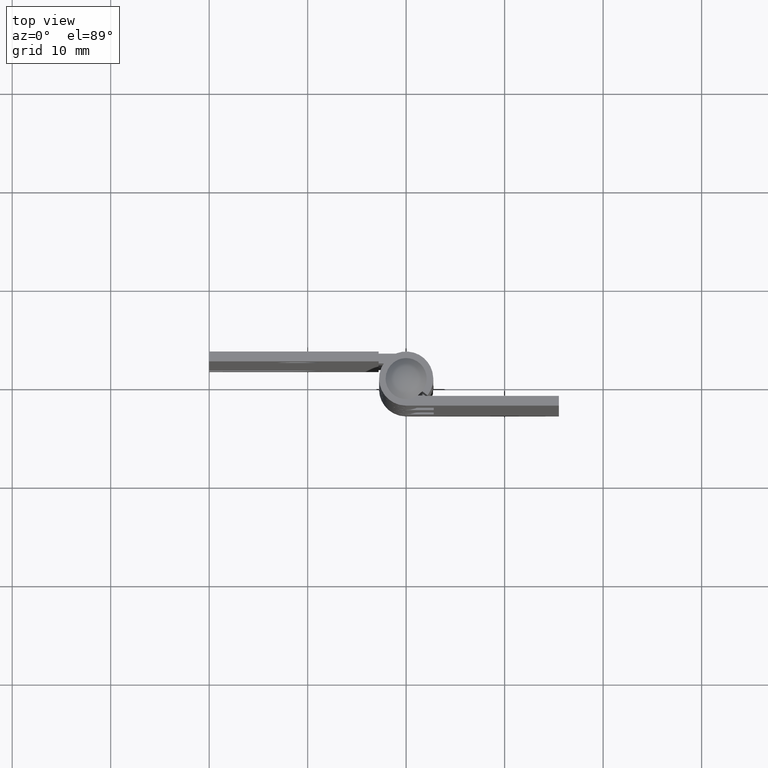
[diagram: clean part render]
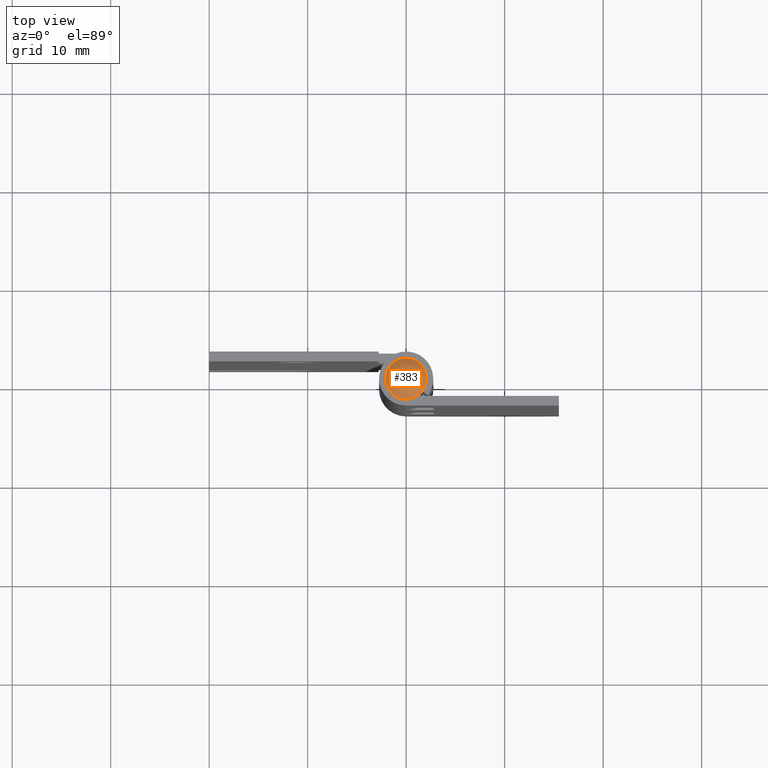
[diagram: same view with one face highlighted and labeled with its STEP entity id]
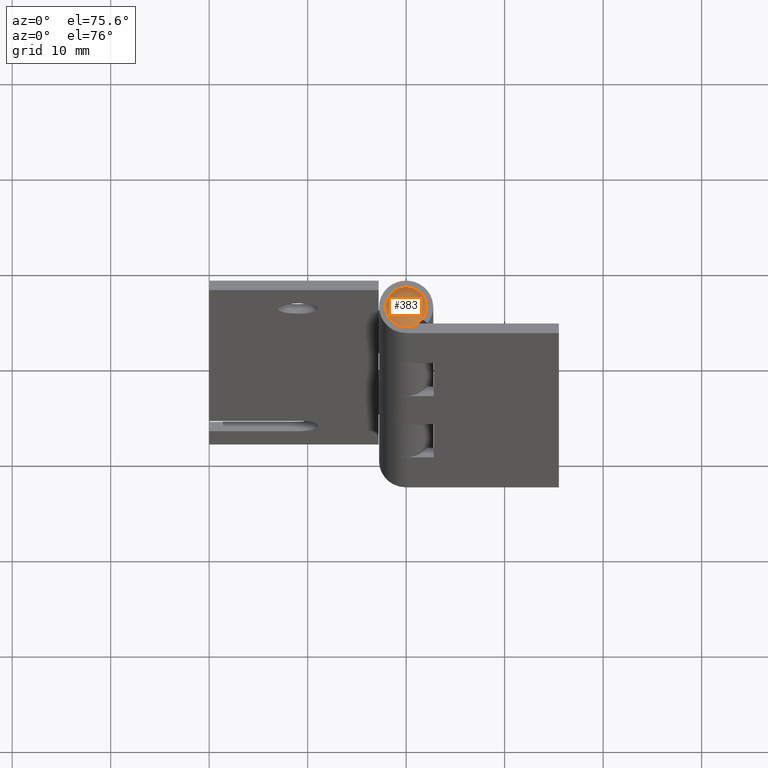
[diagram: same view with one face highlighted and labeled with its STEP entity id]
A machine part, top view. The second image highlights one B-rep face of the part: STEP entity #383.
A second angle (auxiliary view) of the same face is appended — the face is thin or edge-on in the first view.
In plain terms, the highlighted face is a freeform B-spline surface patch.
Its self-contained STEP definition (entity closure, byte-faithful):
#312=CARTESIAN_POINT('',(-2.083333386666650,0.0,63.0));
#313=VERTEX_POINT('',#312);
#314=CARTESIAN_POINT('',(2.083333386666650,0.0,63.0));
#315=VERTEX_POINT('',#314);
#316=CARTESIAN_POINT('',(-2.083333386666650,0.0,63.0));
#317=CARTESIAN_POINT('',(-2.083333386666650,2.083333386666650,63.0));
#318=CARTESIAN_POINT('',(0.0,2.083333386666650,63.0));
#319=CARTESIAN_POINT('',(2.083333386666650,2.083333386666650,63.0));
#320=CARTESIAN_POINT('',(2.083333386666650,0.0,63.0));
#328=(BOUNDED_CURVE()B_SPLINE_CURVE(2,(#316,#317,#318,#319,#320),.UNSPECIFIED.,.F.,.U.)B_SPLINE_CURVE_WITH_KNOTS((3,2,3),(0.0,0.250000000000000,0.500000000000000),.UNSPECIFIED.)CURVE()GEOMETRIC_REPRESENTATION_ITEM()RATIONAL_B_SPLINE_CURVE((1.0,0.707106781186548,1.0,0.707106781186548,1.0))REPRESENTATION_ITEM(''));
#329=EDGE_CURVE('',#313,#315,#328,.T.);
#331=CARTESIAN_POINT('',(2.083333386666650,0.0,63.0));
#332=CARTESIAN_POINT('',(2.083333386666650,-2.083333386666650,63.0));
#333=CARTESIAN_POINT('',(0.0,-2.083333386666650,63.0));
#334=CARTESIAN_POINT('',(-2.083333386666650,-2.083333386666650,63.0));
#335=CARTESIAN_POINT('',(-2.083333386666650,0.0,63.0));
#343=(BOUNDED_CURVE()B_SPLINE_CURVE(2,(#331,#332,#333,#334,#335),.UNSPECIFIED.,.F.,.U.)B_SPLINE_CURVE_WITH_KNOTS((3,2,3),(0.500000000000000,0.750000000000000,1.0),.UNSPECIFIED.)CURVE()GEOMETRIC_REPRESENTATION_ITEM()RATIONAL_B_SPLINE_CURVE((1.0,0.707106781186548,1.0,0.707106781186548,1.0))REPRESENTATION_ITEM(''));
#344=EDGE_CURVE('',#315,#313,#343,.T.);
#355=CARTESIAN_POINT('',(-1.810254168417794,-1.810254168417796,62.088545368346281));
#356=CARTESIAN_POINT('',(-1.102423167886464,-2.204846335772932,62.835946958685511));
#357=CARTESIAN_POINT('',(1.102423218320905,-2.204846335772932,62.835946958685511));
#358=CARTESIAN_POINT('',(1.810254221591834,-1.810254138775044,62.088545312199606));
#359=CARTESIAN_POINT('',(-2.204846335772930,-1.102423167886467,62.835946958685511));
#360=CARTESIAN_POINT('',(-1.409705235804017,-1.409705235804022,64.0));
#361=CARTESIAN_POINT('',(1.409705300296219,-1.409705235804022,64.0));
#362=CARTESIAN_POINT('',(2.204846392667797,-1.102423145899463,62.835946875393844));
#363=CARTESIAN_POINT('',(-2.204846335772930,1.102423218320902,62.835946958685511));
#364=CARTESIAN_POINT('',(-1.409705235804017,1.409705300296214,64.0));
#365=CARTESIAN_POINT('',(1.409705300296219,1.409705300296214,64.0));
#366=CARTESIAN_POINT('',(2.204846392667797,1.102423196333897,62.835946875393844));
#367=CARTESIAN_POINT('',(-1.810254138775042,1.810254221591833,62.088545312199614));
#368=CARTESIAN_POINT('',(-1.102423145899460,2.204846392667794,62.835946875393859));
#369=CARTESIAN_POINT('',(1.102423196333899,2.204846392667794,62.835946875393859));
#370=CARTESIAN_POINT('',(1.810254191949080,1.810254191949079,62.088545256052910));
#378=(BOUNDED_SURFACE()B_SPLINE_SURFACE(2,2,((#355,#359,#363,#367),(#356,#360,#364,#368),(#357,#361,#365,#369),(#358,#362,#366,#370)),.UNSPECIFIED.,.F.,.F.,.U.)B_SPLINE_SURFACE_WITH_KNOTS((3,1,3),(3,1,3),(0.0,2.474541841982506,4.949083797172106),(0.0,2.474541841982504,4.949083797172102),.UNSPECIFIED.)GEOMETRIC_REPRESENTATION_ITEM()RATIONAL_B_SPLINE_SURFACE(((1.557466636893466,1.278733318446733,1.278733318446733,1.557466662396845),(1.278733318446733,1.0,1.0,1.278733343950112),(1.278733318446733,1.0,1.0,1.278733343950112),(1.557466662396845,1.278733343950112,1.278733343950112,1.557466687900225)))REPRESENTATION_ITEM('')SURFACE());
#379=ORIENTED_EDGE('',*,*,#344,.F.);
#380=ORIENTED_EDGE('',*,*,#329,.F.);
#381=EDGE_LOOP('',(#379,#380));
#382=FACE_OUTER_BOUND('',#381,.T.);
#383=ADVANCED_FACE('',(#382),#378,.T.);